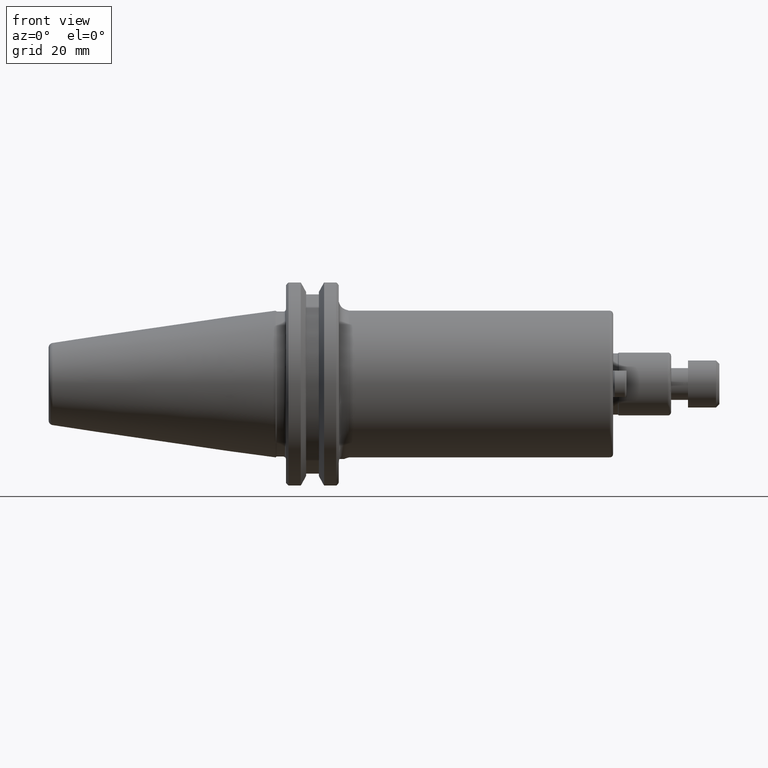
[diagram: clean part render]
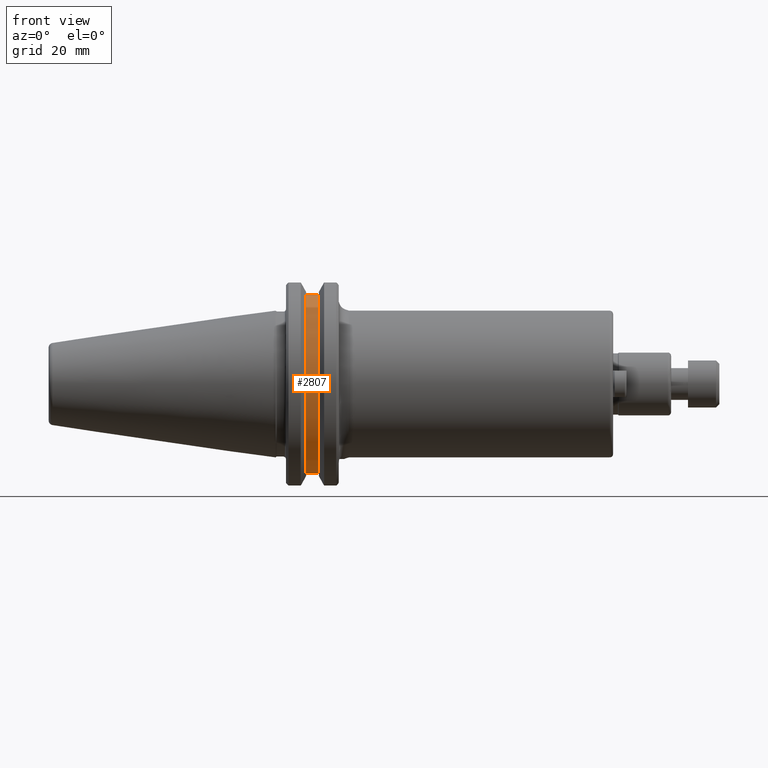
[diagram: same view with one face highlighted and labeled with its STEP entity id]
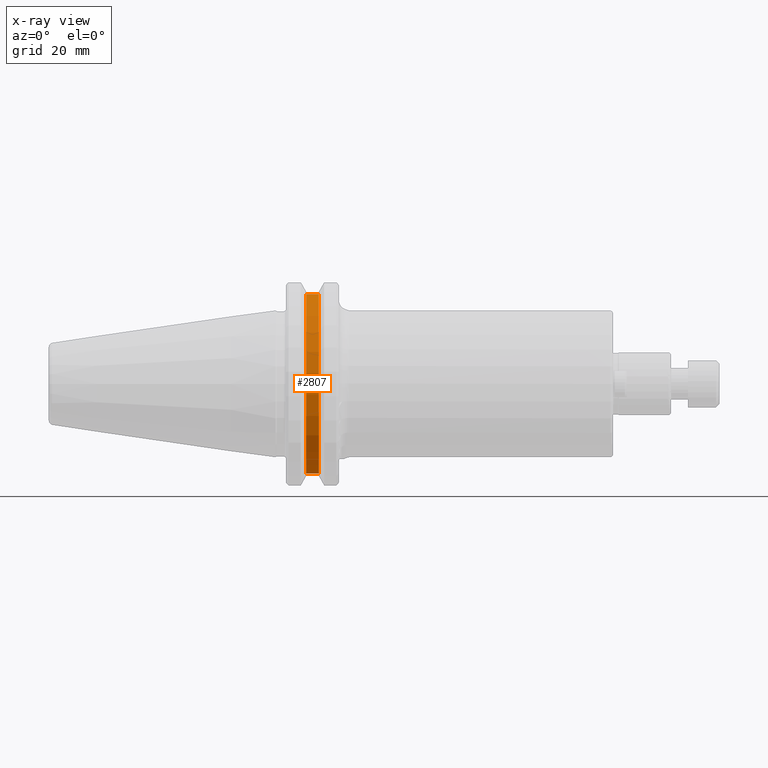
[diagram: x-ray of the same camera — body ghosted, the highlighted face saturated]
A machine part, front view. The second image highlights one B-rep face of the part: STEP entity #2807.
The next image is the same camera in x-ray: the body ghosted, the highlighted face saturated — about 0% of this face is hidden behind the body in this view.
In plain terms, the highlighted cylindrical surface (partial cylindrical patch) has radius 28.1813 mm, axis along (-1, 0, 0).
Its self-contained STEP definition (entity closure, byte-faithful):
#571=FACE_OUTER_BOUND('',#812,.T.);
#812=EDGE_LOOP('',(#2448,#2449,#2450,#2451));
#952=CIRCLE('',#2983,1.10950000000028);
#957=CIRCLE('',#2992,1.1095000000003);
#1036=LINE('',#4503,#1173);
#1060=LINE('',#5170,#1197);
#1173=VECTOR('',#3452,0.151);
#1197=VECTOR('',#3500,0.151);
#1378=VERTEX_POINT('',#4500);
#1379=VERTEX_POINT('',#4502);
#1387=VERTEX_POINT('',#4655);
#1414=VERTEX_POINT('',#5135);
#1655=EDGE_CURVE('',#1379,#1378,#1036,.T.);
#1665=EDGE_CURVE('',#1379,#1387,#952,.T.);
#1699=EDGE_CURVE('',#1378,#1414,#957,.T.);
#1706=EDGE_CURVE('',#1414,#1387,#1060,.T.);
#2448=ORIENTED_EDGE('',*,*,#1655,.T.);
#2449=ORIENTED_EDGE('',*,*,#1699,.T.);
#2450=ORIENTED_EDGE('',*,*,#1706,.T.);
#2451=ORIENTED_EDGE('',*,*,#1665,.F.);
#2672=CYLINDRICAL_SURFACE('',#3094,1.10950000000029);
#2807=ADVANCED_FACE('',(#571),#2672,.T.);
#2983=AXIS2_PLACEMENT_3D('',#4656,#3460,#3461);
#2992=AXIS2_PLACEMENT_3D('',#5137,#3491,#3492);
#3094=AXIS2_PLACEMENT_3D('',#5842,#3750,#3751);
#3452=DIRECTION('',(1.,-1.62451355720802E-13,0.));
#3460=DIRECTION('center_axis',(-1.,1.62451355720802E-13,0.));
#3461=DIRECTION('ref_axis',(1.62482077846342E-13,1.,0.));
#3491=DIRECTION('center_axis',(-1.,1.62451355720802E-13,0.));
#3492=DIRECTION('ref_axis',(1.62482077846342E-13,1.,0.));
#3500=DIRECTION('',(-1.,1.62451355720802E-13,0.));
#3750=DIRECTION('center_axis',(-1.,1.62451355720802E-13,0.));
#3751=DIRECTION('ref_axis',(1.62482077846342E-13,1.,0.));
#4500=CARTESIAN_POINT('',(0.513849999999558,-0.319999999999698,-1.06235128371036));
#4502=CARTESIAN_POINT('',(0.362849999999558,-0.319999999999723,-1.06235128371032));
#4503=CARTESIAN_POINT('',(0.438349999999558,-0.319999999999711,-1.06235128371034));
#4655=CARTESIAN_POINT('',(0.362849999999558,-0.319999999999719,1.06235128371032));
#4656=CARTESIAN_POINT('Origin',(0.36284999999961,-2.77198870834127E-13,
0.));
#5135=CARTESIAN_POINT('',(0.513849999999558,-0.319999999999719,1.06235128371036));
#5137=CARTESIAN_POINT('Origin',(0.51384999999961,-3.01729025547968E-13,
0.));
#5170=CARTESIAN_POINT('',(0.438349999999558,-0.319999999999719,1.06235128371034));
#5842=CARTESIAN_POINT('Origin',(0.43834999999961,-2.89463948191047E-13,
0.));